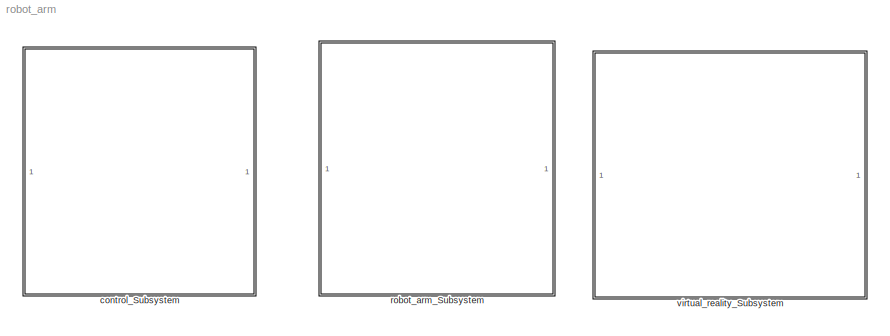
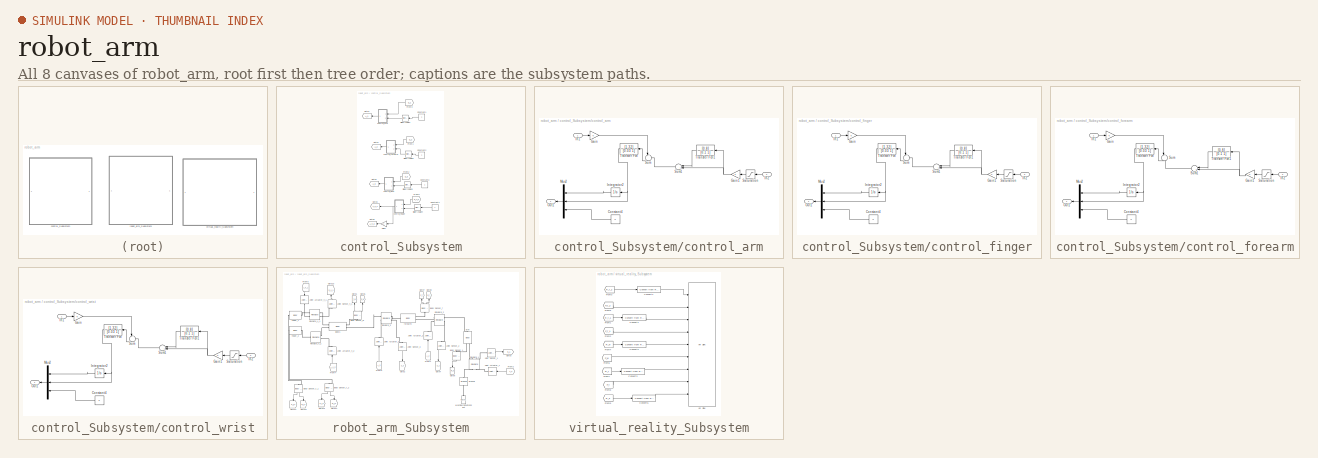
[diagram: thumbnail index - all 8 canvases of the model, root first then tree order]
MODEL robot_arm
KIND model
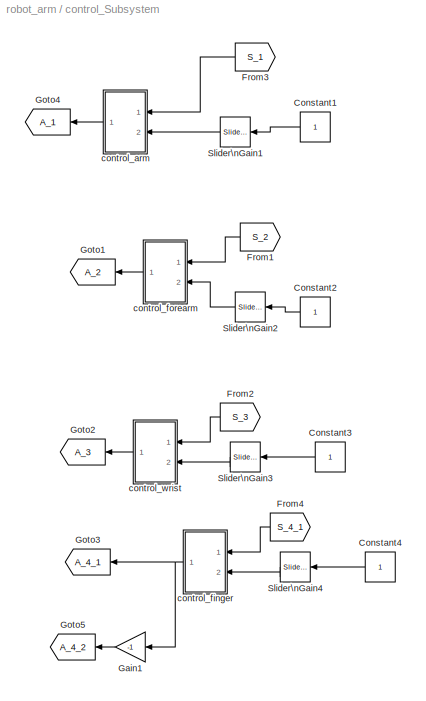
BLOCK [SubSystem] control_Subsystem
  FunctionWithSeparateData = off
  MaskHideContents = off
  MinAlgLoopOccurrences = off
  Opaque = off
  Ports = []
  PropExecContextOutsideSubsystem = off
  RTWSystemCode = Auto
  RequestExecContextInheritance = off
BLOCK [Constant] control_Subsystem/Constant1
  OutDataType = sfix(16)
  OutScaling = 2^0
BLOCK [Constant] control_Subsystem/Constant2
  OutDataType = sfix(16)
  OutScaling = 2^0
BLOCK [Constant] control_Subsystem/Constant3
  OutDataType = sfix(16)
  OutScaling = 2^0
BLOCK [Constant] control_Subsystem/Constant4
  OutDataType = sfix(16)
  OutScaling = 2^0
BLOCK [From] control_Subsystem/From1
  CloseFcn = tagdialog Close
  GotoTag = S_2
  TagVisibility = global
BLOCK [From] control_Subsystem/From2
  CloseFcn = tagdialog Close
  GotoTag = S_3
  TagVisibility = global
BLOCK [From] control_Subsystem/From3
  CloseFcn = tagdialog Close
  GotoTag = S_1
  TagVisibility = global
BLOCK [From] control_Subsystem/From4
  CloseFcn = tagdialog Close
  GotoTag = S_4_1
  TagVisibility = global
BLOCK [Gain] control_Subsystem/Gain1
  Gain = -1
  OutDataType = sfix(16)
  OutDataTypeMode = Inherit via internal rule
  OutDataTypeStr = Inherit: Inherit via internal rule
  OutScaling = 2^0
  ParamDataTypeStr = Inherit: Inherit via internal rule
  ParameterDataType = sfix(16)
  ParameterDataTypeMode = Inherit via internal rule
  ParameterScaling = 2^0
  SaturateOnIntegerOverflow = off
BLOCK [Goto] control_Subsystem/Goto1
  GotoTag = A_2
  TagVisibility = global
BLOCK [Goto] control_Subsystem/Goto2
  GotoTag = A_3
  TagVisibility = global
BLOCK [Goto] control_Subsystem/Goto3
  GotoTag = A_4_1
  TagVisibility = global
BLOCK [Goto] control_Subsystem/Goto4
  GotoTag = A_1
  TagVisibility = global
BLOCK [Goto] control_Subsystem/Goto5
  GotoTag = A_4_2
  TagVisibility = global
BLOCK [Reference] control_Subsystem/Slider\nGain1  REF=simulink/Math\nOperations/Slider\nGain
  FunctionWithSeparateData = off
  Ports = [1, 1]
  RTWMemSecDataConstants = Inherit from model
  RTWMemSecDataInternal = Inherit from model
  RTWMemSecDataParameters = Inherit from model
  RTWMemSecFuncExecute = Inherit from model
  RTWMemSecFuncInitTerm = Inherit from model
  ShowPortLabels = FromPortIcon
  SourceBlock = simulink/Math\nOperations/Slider\nGain
  SourceType = Slider Gain
  SystemSampleTime = -1
  gain = 22.811
  high = 90
  low = -90
BLOCK [Reference] control_Subsystem/Slider\nGain2  REF=simulink/Math\nOperations/Slider\nGain
  FunctionWithSeparateData = off
  Ports = [1, 1]
  RTWMemSecDataConstants = Inherit from model
  RTWMemSecDataInternal = Inherit from model
  RTWMemSecDataParameters = Inherit from model
  RTWMemSecFuncExecute = Inherit from model
  RTWMemSecFuncInitTerm = Inherit from model
  ShowPortLabels = FromPortIcon
  SourceBlock = simulink/Math\nOperations/Slider\nGain
  SourceType = Slider Gain
  SystemSampleTime = -1
  gain = 17.5807
  high = 30
  low = -25
BLOCK [Reference] control_Subsystem/Slider\nGain3  REF=simulink/Math\nOperations/Slider\nGain
  FunctionWithSeparateData = off
  Ports = [1, 1]
  RTWMemSecDataConstants = Inherit from model
  RTWMemSecDataInternal = Inherit from model
  RTWMemSecDataParameters = Inherit from model
  RTWMemSecFuncExecute = Inherit from model
  RTWMemSecFuncInitTerm = Inherit from model
  ShowPortLabels = FromPortIcon
  SourceBlock = simulink/Math\nOperations/Slider\nGain
  SourceType = Slider Gain
  SystemSampleTime = -1
  gain = 0.48385
  high = 45
  low = -25
BLOCK [Reference] control_Subsystem/Slider\nGain4  REF=simulink/Math\nOperations/Slider\nGain
  FunctionWithSeparateData = off
  Ports = [1, 1]
  RTWMemSecDataConstants = Inherit from model
  RTWMemSecDataInternal = Inherit from model
  RTWMemSecDataParameters = Inherit from model
  RTWMemSecFuncExecute = Inherit from model
  RTWMemSecFuncInitTerm = Inherit from model
  ShowPortLabels = FromPortIcon
  SourceBlock = simulink/Math\nOperations/Slider\nGain
  SourceType = Slider Gain
  SystemSampleTime = -1
  gain = 0
  high = 0
  low = -10
BLOCK [SubSystem] control_Subsystem/control_arm
  FunctionWithSeparateData = off
  MaskHideContents = off
  MinAlgLoopOccurrences = off
  Opaque = off
  Ports = [2, 1]
  PropExecContextOutsideSubsystem = off
  RTWSystemCode = Auto
  RequestExecContextInheritance = off
BLOCK [Constant] control_Subsystem/control_arm/Constant4
  OutDataType = sfix(16)
  OutScaling = 2^0
  Value = 0
BLOCK [Gain] control_Subsystem/control_arm/Gain
  OutDataType = sfix(16)
  OutDataTypeMode = Inherit via internal rule
  OutDataTypeStr = Inherit: Inherit via internal rule
  OutScaling = 2^0
  ParamDataTypeStr = Inherit: Inherit via internal rule
  ParameterDataType = sfix(16)
  ParameterDataTypeMode = Inherit via internal rule
  ParameterScaling = 2^0
  SaturateOnIntegerOverflow = off
BLOCK [Gain] control_Subsystem/control_arm/Gain1
  OutDataType = sfix(16)
  OutDataTypeMode = Inherit via internal rule
  OutDataTypeStr = Inherit: Inherit via internal rule
  OutScaling = 2^0
  ParamDataTypeStr = Inherit: Inherit via internal rule
  ParameterDataType = sfix(16)
  ParameterDataTypeMode = Inherit via internal rule
  ParameterScaling = 2^0
  SaturateOnIntegerOverflow = off
BLOCK [Inport] control_Subsystem/control_arm/In1
  IconDisplay = Port number
BLOCK [Inport] control_Subsystem/control_arm/In2
  IconDisplay = Port number
  Port = 2
BLOCK [Integrator] control_Subsystem/control_arm/Integrator2
  Ports = [1, 1]
BLOCK [Mux] control_Subsystem/control_arm/Mux2
  DisplayOption = bar
  Inputs = 3
  Ports = [3, 1]
BLOCK [Outport] control_Subsystem/control_arm/Out1
  IconDisplay = Port number
BLOCK [Saturate] control_Subsystem/control_arm/Saturation
  LowerLimit = -90
  OutDataType = sfix(16)
  OutMax = [90]
  OutMin = [-90]
  OutScaling = 2^0
  UpperLimit = 90
BLOCK [Sum] control_Subsystem/control_arm/Sum
  IconShape = round
  InputSameDT = off
  Inputs = |-+
  OutDataType = sfix(16)
  OutDataTypeMode = Inherit via internal rule
  OutDataTypeStr = Inherit: Inherit via internal rule
  OutScaling = 2^0
  Ports = [2, 1]
  SaturateOnIntegerOverflow = off
BLOCK [Sum] control_Subsystem/control_arm/Sum1
  IconShape = round
  InputSameDT = off
  Inputs = |++
  OutDataType = sfix(16)
  OutDataTypeMode = Inherit via internal rule
  OutDataTypeStr = Inherit: Inherit via internal rule
  OutScaling = 2^0
  Ports = [2, 1]
  SaturateOnIntegerOverflow = off
BLOCK [TransferFcn] control_Subsystem/control_arm/Transfer Fcn
  Denominator = [0.03 1]
  Numerator = [1.32]
BLOCK [TransferFcn] control_Subsystem/control_arm/Transfer Fcn1
  Denominator = [0.1 1]
  Numerator = [0.8]
BLOCK [SubSystem] control_Subsystem/control_finger
  FunctionWithSeparateData = off
  MaskHideContents = off
  MinAlgLoopOccurrences = off
  Opaque = off
  Ports = [2, 1]
  PropExecContextOutsideSubsystem = off
  RTWSystemCode = Auto
  RequestExecContextInheritance = off
BLOCK [Constant] control_Subsystem/control_finger/Constant4
  OutDataType = sfix(16)
  OutScaling = 2^0
  Value = 0
BLOCK [Gain] control_Subsystem/control_finger/Gain
  OutDataType = sfix(16)
  OutDataTypeMode = Inherit via internal rule
  OutDataTypeStr = Inherit: Inherit via internal rule
  OutScaling = 2^0
  ParamDataTypeStr = Inherit: Inherit via internal rule
  ParameterDataType = sfix(16)
  ParameterDataTypeMode = Inherit via internal rule
  ParameterScaling = 2^0
  SaturateOnIntegerOverflow = off
BLOCK [Gain] control_Subsystem/control_finger/Gain1
  OutDataType = sfix(16)
  OutDataTypeMode = Inherit via internal rule
  OutDataTypeStr = Inherit: Inherit via internal rule
  OutScaling = 2^0
  ParamDataTypeStr = Inherit: Inherit via internal rule
  ParameterDataType = sfix(16)
  ParameterDataTypeMode = Inherit via internal rule
  ParameterScaling = 2^0
  SaturateOnIntegerOverflow = off
BLOCK [Inport] control_Subsystem/control_finger/In1
  IconDisplay = Port number
BLOCK [Inport] control_Subsystem/control_finger/In2
  IconDisplay = Port number
  Port = 2
BLOCK [Integrator] control_Subsystem/control_finger/Integrator2
  Ports = [1, 1]
BLOCK [Mux] control_Subsystem/control_finger/Mux2
  DisplayOption = bar
  Inputs = 3
  Ports = [3, 1]
BLOCK [Outport] control_Subsystem/control_finger/Out1
  IconDisplay = Port number
BLOCK [Saturate] control_Subsystem/control_finger/Saturation
  LowerLimit = -90
  OutDataType = sfix(16)
  OutMax = [90]
  OutMin = [-90]
  OutScaling = 2^0
  UpperLimit = 80
BLOCK [Sum] control_Subsystem/control_finger/Sum
  IconShape = round
  InputSameDT = off
  Inputs = |-+
  OutDataType = sfix(16)
  OutDataTypeMode = Inherit via internal rule
  OutDataTypeStr = Inherit: Inherit via internal rule
  OutScaling = 2^0
  Ports = [2, 1]
  SaturateOnIntegerOverflow = off
BLOCK [Sum] control_Subsystem/control_finger/Sum1
  IconShape = round
  InputSameDT = off
  Inputs = |++
  OutDataType = sfix(16)
  OutDataTypeMode = Inherit via internal rule
  OutDataTypeStr = Inherit: Inherit via internal rule
  OutScaling = 2^0
  Ports = [2, 1]
  SaturateOnIntegerOverflow = off
BLOCK [TransferFcn] control_Subsystem/control_finger/Transfer Fcn
  Denominator = [0.03 1]
  Numerator = [1.32]
BLOCK [TransferFcn] control_Subsystem/control_finger/Transfer Fcn1
  Denominator = [0.1 1]
  Numerator = [0.8]
BLOCK [SubSystem] control_Subsystem/control_forearm
  FunctionWithSeparateData = off
  MaskHideContents = off
  MinAlgLoopOccurrences = off
  Opaque = off
  Ports = [2, 1]
  PropExecContextOutsideSubsystem = off
  RTWSystemCode = Auto
  RequestExecContextInheritance = off
BLOCK [Constant] control_Subsystem/control_forearm/Constant4
  OutDataType = sfix(16)
  OutScaling = 2^0
  Value = 0
BLOCK [Gain] control_Subsystem/control_forearm/Gain
  OutDataType = sfix(16)
  OutDataTypeMode = Inherit via internal rule
  OutDataTypeStr = Inherit: Inherit via internal rule
  OutScaling = 2^0
  ParamDataTypeStr = Inherit: Inherit via internal rule
  ParameterDataType = sfix(16)
  ParameterDataTypeMode = Inherit via internal rule
  ParameterScaling = 2^0
  SaturateOnIntegerOverflow = off
BLOCK [Gain] control_Subsystem/control_forearm/Gain1
  OutDataType = sfix(16)
  OutDataTypeMode = Inherit via internal rule
  OutDataTypeStr = Inherit: Inherit via internal rule
  OutScaling = 2^0
  ParamDataTypeStr = Inherit: Inherit via internal rule
  ParameterDataType = sfix(16)
  ParameterDataTypeMode = Inherit via internal rule
  ParameterScaling = 2^0
  SaturateOnIntegerOverflow = off
BLOCK [Inport] control_Subsystem/control_forearm/In1
  IconDisplay = Port number
BLOCK [Inport] control_Subsystem/control_forearm/In2
  IconDisplay = Port number
  Port = 2
BLOCK [Integrator] control_Subsystem/control_forearm/Integrator2
  Ports = [1, 1]
BLOCK [Mux] control_Subsystem/control_forearm/Mux2
  DisplayOption = bar
  Inputs = 3
  Ports = [3, 1]
BLOCK [Outport] control_Subsystem/control_forearm/Out1
  IconDisplay = Port number
BLOCK [Saturate] control_Subsystem/control_forearm/Saturation
  LowerLimit = -90
  OutDataType = sfix(16)
  OutMax = [90]
  OutMin = [-90]
  OutScaling = 2^0
  UpperLimit = 80
BLOCK [Sum] control_Subsystem/control_forearm/Sum
  IconShape = round
  InputSameDT = off
  Inputs = |-+
  OutDataType = sfix(16)
  OutDataTypeMode = Inherit via internal rule
  OutDataTypeStr = Inherit: Inherit via internal rule
  OutScaling = 2^0
  Ports = [2, 1]
  SaturateOnIntegerOverflow = off
BLOCK [Sum] control_Subsystem/control_forearm/Sum1
  IconShape = round
  InputSameDT = off
  Inputs = |++
  OutDataType = sfix(16)
  OutDataTypeMode = Inherit via internal rule
  OutDataTypeStr = Inherit: Inherit via internal rule
  OutScaling = 2^0
  Ports = [2, 1]
  SaturateOnIntegerOverflow = off
BLOCK [TransferFcn] control_Subsystem/control_forearm/Transfer Fcn
  Denominator = [0.03 1]
  Numerator = [1.32]
BLOCK [TransferFcn] control_Subsystem/control_forearm/Transfer Fcn1
  Denominator = [0.1 1]
  Numerator = [0.8]
BLOCK [SubSystem] control_Subsystem/control_wrist
  FunctionWithSeparateData = off
  MaskHideContents = off
  MinAlgLoopOccurrences = off
  Opaque = off
  Ports = [2, 1]
  PropExecContextOutsideSubsystem = off
  RTWSystemCode = Auto
  RequestExecContextInheritance = off
BLOCK [Constant] control_Subsystem/control_wrist/Constant4
  OutDataType = sfix(16)
  OutScaling = 2^0
  Value = 0
BLOCK [Gain] control_Subsystem/control_wrist/Gain
  OutDataType = sfix(16)
  OutDataTypeMode = Inherit via internal rule
  OutDataTypeStr = Inherit: Inherit via internal rule
  OutScaling = 2^0
  ParamDataTypeStr = Inherit: Inherit via internal rule
  ParameterDataType = sfix(16)
  ParameterDataTypeMode = Inherit via internal rule
  ParameterScaling = 2^0
  SaturateOnIntegerOverflow = off
BLOCK [Gain] control_Subsystem/control_wrist/Gain1
  OutDataType = sfix(16)
  OutDataTypeMode = Inherit via internal rule
  OutDataTypeStr = Inherit: Inherit via internal rule
  OutScaling = 2^0
  ParamDataTypeStr = Inherit: Inherit via internal rule
  ParameterDataType = sfix(16)
  ParameterDataTypeMode = Inherit via internal rule
  ParameterScaling = 2^0
  SaturateOnIntegerOverflow = off
BLOCK [Inport] control_Subsystem/control_wrist/In1
  IconDisplay = Port number
BLOCK [Inport] control_Subsystem/control_wrist/In2
  IconDisplay = Port number
  Port = 2
BLOCK [Integrator] control_Subsystem/control_wrist/Integrator2
  Ports = [1, 1]
BLOCK [Mux] control_Subsystem/control_wrist/Mux2
  DisplayOption = bar
  Inputs = 3
  Ports = [3, 1]
BLOCK [Outport] control_Subsystem/control_wrist/Out1
  IconDisplay = Port number
BLOCK [Saturate] control_Subsystem/control_wrist/Saturation
  LowerLimit = -90
  OutDataType = sfix(16)
  OutMax = [90]
  OutMin = [-90]
  OutScaling = 2^0
  UpperLimit = 80
BLOCK [Sum] control_Subsystem/control_wrist/Sum
  IconShape = round
  InputSameDT = off
  Inputs = |-+
  OutDataType = sfix(16)
  OutDataTypeMode = Inherit via internal rule
  OutDataTypeStr = Inherit: Inherit via internal rule
  OutScaling = 2^0
  Ports = [2, 1]
  SaturateOnIntegerOverflow = off
BLOCK [Sum] control_Subsystem/control_wrist/Sum1
  IconShape = round
  InputSameDT = off
  Inputs = |++
  OutDataType = sfix(16)
  OutDataTypeMode = Inherit via internal rule
  OutDataTypeStr = Inherit: Inherit via internal rule
  OutScaling = 2^0
  Ports = [2, 1]
  SaturateOnIntegerOverflow = off
BLOCK [TransferFcn] control_Subsystem/control_wrist/Transfer Fcn
  Denominator = [0.03 1]
  Numerator = [1.32]
BLOCK [TransferFcn] control_Subsystem/control_wrist/Transfer Fcn1
  Denominator = [0.1 1]
  Numerator = [0.8]
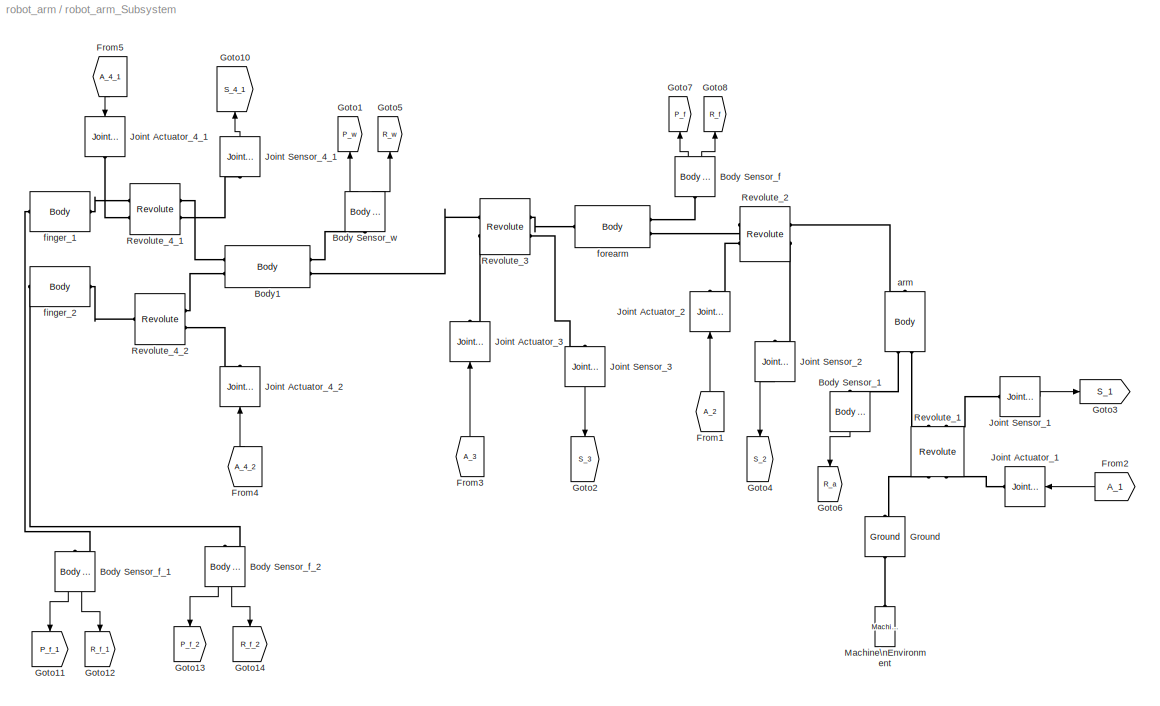
BLOCK [SubSystem] robot_arm_Subsystem
  FunctionWithSeparateData = off
  MaskHideContents = off
  MinAlgLoopOccurrences = off
  Opaque = off
  Ports = []
  PropExecContextOutsideSubsystem = off
  RTWSystemCode = Auto
  RequestExecContextInheritance = off
BLOCK [Reference] robot_arm_Subsystem/Body Sensor_1  REF=mblibv1/Sensors & \nActuators/Body Sensor
  Acceleration = off
  AccelerationUnits = m/s^2
  ActiveIO = on
  Angle = on
  AngleUnits = deg
  ArcAcceleration = off
  ArcAccelerationUnits = deg/s^2
  ArcVelocity = off
  ArcVelocityUnits = deg/s
  ClassName = BodySensor
  CoordPosition = off
  CoordPositionUnits = m
  DialogClass = MechanicalSensorBlock
  DialogController = MECH.DynMechDlgSource
  FunctionWithSeparateData = off
  Muxed = off
  OutputVector = [1]
  PhysicalDomain = Mechanical
  PortType = blob
  Ports = [0, 1, 0, 0, 0, 1]
  Pose = on
  Quaternion = on
  QuaternionDDT = off
  QuaternionDT = off
  QuaternionUnits = off
  RTWMemSecDataConstants = Inherit from model
  RTWMemSecDataInternal = Inherit from model
  RTWMemSecDataParameters = Inherit from model
  RTWMemSecFuncExecute = Inherit from model
  RTWMemSecFuncInitTerm = Inherit from model
  ReferenceFrame = Absolute (World)
  ShowPortLabels = FromPortIcon
  SourceBlock = mblibv1/Sensors & \nActuators/Body Sensor
  SourceType = Body Sensor
  SystemSampleTime = -1
  UpdateFromCAD = off
  Velocity = off
  VelocityUnits = m/s
  Width = 9
BLOCK [Reference] robot_arm_Subsystem/Body Sensor_f  REF=mblibv1/Sensors & \nActuators/Body Sensor
  Acceleration = off
  AccelerationUnits = m/s^2
  ActiveIO = on
  Angle = on
  AngleUnits = deg
  ArcAcceleration = off
  ArcAccelerationUnits = deg/s^2
  ArcVelocity = off
  ArcVelocityUnits = deg/s
  ClassName = BodySensor
  CoordPosition = on
  CoordPositionUnits = m
  DialogClass = MechanicalSensorBlock
  DialogController = MECH.DynMechDlgSource
  FunctionWithSeparateData = off
  Muxed = off
  OutputVector = [1]
  PhysicalDomain = Mechanical
  PortType = blob
  Ports = [0, 2, 0, 0, 0, 1]
  Pose = on
  Quaternion = on
  QuaternionDDT = off
  QuaternionDT = off
  QuaternionUnits = off
  RTWMemSecDataConstants = Inherit from model
  RTWMemSecDataInternal = Inherit from model
  RTWMemSecDataParameters = Inherit from model
  RTWMemSecFuncExecute = Inherit from model
  RTWMemSecFuncInitTerm = Inherit from model
  ReferenceFrame = Absolute (World)
  ShowPortLabels = FromPortIcon
  SourceBlock = mblibv1/Sensors & \nActuators/Body Sensor
  SourceType = Body Sensor
  SystemSampleTime = -1
  UpdateFromCAD = off
  Velocity = off
  VelocityUnits = m/s
  Width = 12
BLOCK [Reference] robot_arm_Subsystem/Body Sensor_f_1  REF=mblibv1/Sensors & \nActuators/Body Sensor
  Acceleration = off
  AccelerationUnits = m/s^2
  ActiveIO = on
  Angle = on
  AngleUnits = deg
  ArcAcceleration = off
  ArcAccelerationUnits = deg/s^2
  ArcVelocity = off
  ArcVelocityUnits = deg/s
  ClassName = BodySensor
  CoordPosition = on
  CoordPositionUnits = m
  DialogClass = MechanicalSensorBlock
  DialogController = MECH.DynMechDlgSource
  FunctionWithSeparateData = off
  Muxed = off
  OutputVector = [1]
  PhysicalDomain = Mechanical
  PortType = blob
  Ports = [0, 2, 0, 0, 0, 1]
  Pose = on
  Quaternion = on
  QuaternionDDT = off
  QuaternionDT = off
  QuaternionUnits = off
  RTWMemSecDataConstants = Inherit from model
  RTWMemSecDataInternal = Inherit from model
  RTWMemSecDataParameters = Inherit from model
  RTWMemSecFuncExecute = Inherit from model
  RTWMemSecFuncInitTerm = Inherit from model
  ReferenceFrame = Absolute (World)
  ShowPortLabels = FromPortIcon
  SourceBlock = mblibv1/Sensors & \nActuators/Body Sensor
  SourceType = Body Sensor
  SystemSampleTime = -1
  UpdateFromCAD = off
  Velocity = off
  VelocityUnits = m/s
  Width = 12
BLOCK [Reference] robot_arm_Subsystem/Body Sensor_f_2  REF=mblibv1/Sensors & \nActuators/Body Sensor
  Acceleration = off
  AccelerationUnits = m/s^2
  ActiveIO = on
  Angle = on
  AngleUnits = deg
  ArcAcceleration = off
  ArcAccelerationUnits = deg/s^2
  ArcVelocity = off
  ArcVelocityUnits = deg/s
  ClassName = BodySensor
  CoordPosition = on
  CoordPositionUnits = m
  DialogClass = MechanicalSensorBlock
  DialogController = MECH.DynMechDlgSource
  FunctionWithSeparateData = off
  Muxed = off
  OutputVector = [1]
  PhysicalDomain = Mechanical
  PortType = blob
  Ports = [0, 2, 0, 0, 0, 1]
  Pose = on
  Quaternion = on
  QuaternionDDT = off
  QuaternionDT = off
  QuaternionUnits = off
  RTWMemSecDataConstants = Inherit from model
  RTWMemSecDataInternal = Inherit from model
  RTWMemSecDataParameters = Inherit from model
  RTWMemSecFuncExecute = Inherit from model
  RTWMemSecFuncInitTerm = Inherit from model
  ReferenceFrame = Absolute (World)
  ShowPortLabels = FromPortIcon
  SourceBlock = mblibv1/Sensors & \nActuators/Body Sensor
  SourceType = Body Sensor
  SystemSampleTime = -1
  UpdateFromCAD = off
  Velocity = off
  VelocityUnits = m/s
  Width = 12
BLOCK [Reference] robot_arm_Subsystem/Body Sensor_w  REF=mblibv1/Sensors & \nActuators/Body Sensor
  Acceleration = off
  AccelerationUnits = m/s^2
  ActiveIO = on
  Angle = on
  AngleUnits = deg
  ArcAcceleration = off
  ArcAccelerationUnits = deg/s^2
  ArcVelocity = off
  ArcVelocityUnits = deg/s
  ClassName = BodySensor
  CoordPosition = on
  CoordPositionUnits = m
  DialogClass = MechanicalSensorBlock
  DialogController = MECH.DynMechDlgSource
  FunctionWithSeparateData = off
  Muxed = off
  OutputVector = [1]
  PhysicalDomain = Mechanical
  PortType = blob
  Ports = [0, 2, 0, 0, 0, 1]
  Pose = on
  Quaternion = on
  QuaternionDDT = off
  QuaternionDT = off
  QuaternionUnits = off
  RTWMemSecDataConstants = Inherit from model
  RTWMemSecDataInternal = Inherit from model
  RTWMemSecDataParameters = Inherit from model
  RTWMemSecFuncExecute = Inherit from model
  RTWMemSecFuncInitTerm = Inherit from model
  ReferenceFrame = Absolute (World)
  ShowPortLabels = FromPortIcon
  SourceBlock = mblibv1/Sensors & \nActuators/Body Sensor
  SourceType = Body Sensor
  SystemSampleTime = -1
  UpdateFromCAD = off
  Velocity = off
  VelocityUnits = m/s
  Width = 12
BLOCK [Reference] robot_arm_Subsystem/Body1  REF=mblibv1/Bodies/Body
  AttachedToCS = CG
  BodyColor = [1 0 0]
  BodyColorSelMode = MACHINE_DEFAULT
  CG = Left$CG$[0 0.1 0]$CS1$CS1$m$[0 0 0]$Euler X-Y-Z$deg$CS1$true$none
  CGPos = [0 0.1 0]
  CGRot = [0 0 0]
  CS0Pos = []
  CS0Rot = []
  CS10Pos = []
  CS10Rot = []
  CS11Pos = []
  CS11Rot = []
  CS12Pos = []
  CS12Rot = []
  CS13Pos = []
  CS13Rot = []
  CS14Pos = []
  CS14Rot = []
  CS15Pos = []
  CS15Rot = []
  CS16Pos = []
  CS16Rot = []
  CS17Pos = []
  CS17Rot = []
  CS18Pos = []
  CS18Rot = []
  CS19Pos = []
  CS19Rot = []
  CS1Pos = [0 0 0]
  CS1Rot = [0 0 45]
  CS20Pos = []
  CS20Rot = []
  CS2Pos = [0 0.2 -0.03]
  CS2Rot = [0 0 0]
  CS3Pos = [0 0.2 0.03]
  CS3Rot = [0 0 0]
  CS4Pos = []
  CS4Rot = []
  CS5Pos = []
  CS5Rot = []
  CS6Pos = []
  CS6Rot = []
  CS7Pos = []
  CS7Rot = []
  CS8Pos = []
  CS8Rot = []
  CS9Pos = []
  CS9Rot = []
  ClassName = Body
  Density = 1
  DensityUnits = kg/m^3
  DensityUse = false
  DialogClass = MechanicalBodyBlock
  DialogController = MECH.DynMechDlgSource
  GraphicsMode = MACHINE_DEFAULT
  Inertia = [0.0038 0 0 ; 0 0.0005 0 ;0 0 0.0038]
  InertiaUnits = kg*m^2
  LConnTagsString = CG|CS1
  LeftPortType = workingframe
  Mass = 1.9
  MassUnits = kg
  PhysicalDomain = mechanical
  Ports = [0, 0, 0, 0, 0, 2, 2]
  RConnTagsString = CS3|CS2
  RightPortType = workingframe
  Shape = Cylinder
  ShapeDims = [1 1]
  ShapeUnits = m
  ShapeUse = false
  SourceBlock = mblibv1/Bodies/Body
  SourceType = Body
  SubClassName = Unknown
  UpdateFromCAD = off
  WorkingFrames = Right$CS3$[0 0.2 0.03]$CS1$CS1$m$[0 0 0]$Euler X-Y-Z$deg$CS1$true$none#Left$CS1$[0 0 0]$World$Adjoining$m$[0 0 45]$Euler X-Y-Z$deg$Adjoining$true$none#Right$CS2$[0 0.2 -0.03]$CS1$CS1$m$[0 0 0]$Euler X-Y-Z$deg$CS1$true$none
BLOCK [From] robot_arm_Subsystem/From1
  CloseFcn = tagdialog Close
  GotoTag = A_2
  TagVisibility = global
BLOCK [From] robot_arm_Subsystem/From2
  CloseFcn = tagdialog Close
  GotoTag = A_1
  TagVisibility = global
BLOCK [From] robot_arm_Subsystem/From3
  CloseFcn = tagdialog Close
  GotoTag = A_3
  TagVisibility = global
BLOCK [From] robot_arm_Subsystem/From4
  CloseFcn = tagdialog Close
  GotoTag = A_4_2
  TagVisibility = global
BLOCK [From] robot_arm_Subsystem/From5
  CloseFcn = tagdialog Close
  GotoTag = A_4_1
  TagVisibility = global
BLOCK [Goto] robot_arm_Subsystem/Goto1
  GotoTag = P_w
  TagVisibility = global
BLOCK [Goto] robot_arm_Subsystem/Goto10
  GotoTag = S_4_1
  TagVisibility = global
BLOCK [Goto] robot_arm_Subsystem/Goto11
  GotoTag = P_f_1
  TagVisibility = global
BLOCK [Goto] robot_arm_Subsystem/Goto12
  GotoTag = R_f_1
  TagVisibility = global
BLOCK [Goto] robot_arm_Subsystem/Goto13
  GotoTag = P_f_2
  TagVisibility = global
BLOCK [Goto] robot_arm_Subsystem/Goto14
  GotoTag = R_f_2
  TagVisibility = global
BLOCK [Goto] robot_arm_Subsystem/Goto2
  GotoTag = S_3
  TagVisibility = global
BLOCK [Goto] robot_arm_Subsystem/Goto3
  GotoTag = S_1
  TagVisibility = global
BLOCK [Goto] robot_arm_Subsystem/Goto4
  GotoTag = S_2
  TagVisibility = global
BLOCK [Goto] robot_arm_Subsystem/Goto5
  GotoTag = R_w
  TagVisibility = global
BLOCK [Goto] robot_arm_Subsystem/Goto6
  GotoTag = R_a
  TagVisibility = global
BLOCK [Goto] robot_arm_Subsystem/Goto7
  GotoTag = P_f
  TagVisibility = global
BLOCK [Goto] robot_arm_Subsystem/Goto8
  GotoTag = R_f
  TagVisibility = global
BLOCK [Reference] robot_arm_Subsystem/Ground  REF=mblibv1/Bodies/Ground
  ClassName = Ground
  CoordPosition = [0 0 0]
  CoordPositionUnits = m
  DialogClass = GroundBlock
  DialogController = MECH.DynMechDlgSource
  FunctionWithSeparateData = off
  LeftPortType = env
  MachineId = [2 0]
  PhysicalDomain = Mechanical
  Ports = [0, 0, 0, 0, 0, 1, 1]
  RTWMemSecDataConstants = Inherit from model
  RTWMemSecDataInternal = Inherit from model
  RTWMemSecDataParameters = Inherit from model
  RTWMemSecFuncExecute = Inherit from model
  RTWMemSecFuncInitTerm = Inherit from model
  RightPortType = workingframe
  ShowEnvPort = on
  ShowPortLabels = FromPortIcon
  SourceBlock = mblibv1/Bodies/Ground
  SourceType = Ground
  StateVectorMgrId = 1
  SystemSampleTime = -1
  UpdateFromCAD = off
  UserData = DataTag0
  UserDataPersistent = on
BLOCK [Reference] robot_arm_Subsystem/Joint Actuator_1  REF=mblibv1/Sensors & \nActuators/Joint Actuator
  AccelerationUnits = m/s^2
  ActiveIO = on
  ActuationStyle = Motion
  AngleUnits = deg
  ArcAccelerationUnits = deg/s^2
  ArcVelocityUnits = deg/s
  ClassName = JointActuator
  CoordPositionUnits = m
  DialogClass = MechanicalActuatorBlock
  DialogController = MECH.DynMechDlgSource
  ForceUnits = N
  FunctionWithSeparateData = off
  PhysicalDomain = Mechanical
  PortType = blob
  Ports = [1, 0, 0, 0, 0, 0, 1]
  Primitive = R1
  RTWMemSecDataConstants = Inherit from model
  RTWMemSecDataInternal = Inherit from model
  RTWMemSecDataParameters = Inherit from model
  RTWMemSecFuncExecute = Inherit from model
  RTWMemSecFuncInitTerm = Inherit from model
  ReferenceFrame = Absolute (INERTIAL)
  ShowPortLabels = FromPortIcon
  SourceBlock = mblibv1/Sensors & \nActuators/Joint Actuator
  SourceType = Joint Actuator
  SystemSampleTime = -1
  TorqueUnits = N*m
  UpdateFromCAD = off
  VelocityUnits = m/s
  Width = 3
BLOCK [Reference] robot_arm_Subsystem/Joint Actuator_2  REF=mblibv1/Sensors & \nActuators/Joint Actuator
  AccelerationUnits = m/s^2
  ActiveIO = on
  ActuationStyle = Motion
  AngleUnits = deg
  ArcAccelerationUnits = deg/s^2
  ArcVelocityUnits = deg/s
  ClassName = JointActuator
  CoordPositionUnits = m
  DialogClass = MechanicalActuatorBlock
  DialogController = MECH.DynMechDlgSource
  ForceUnits = N
  FunctionWithSeparateData = off
  PhysicalDomain = Mechanical
  PortType = blob
  Ports = [1, 0, 0, 0, 0, 0, 1]
  Primitive = R1
  RTWMemSecDataConstants = Inherit from model
  RTWMemSecDataInternal = Inherit from model
  RTWMemSecDataParameters = Inherit from model
  RTWMemSecFuncExecute = Inherit from model
  RTWMemSecFuncInitTerm = Inherit from model
  ReferenceFrame = Absolute (INERTIAL)
  ShowPortLabels = FromPortIcon
  SourceBlock = mblibv1/Sensors & \nActuators/Joint Actuator
  SourceType = Joint Actuator
  SystemSampleTime = -1
  TorqueUnits = N*m
  UpdateFromCAD = off
  VelocityUnits = m/s
  Width = 3
BLOCK [Reference] robot_arm_Subsystem/Joint Actuator_3  REF=mblibv1/Sensors & \nActuators/Joint Actuator
  AccelerationUnits = m/s^2
  ActiveIO = on
  ActuationStyle = Motion
  AngleUnits = deg
  ArcAccelerationUnits = deg/s^2
  ArcVelocityUnits = deg/s
  ClassName = JointActuator
  CoordPositionUnits = m
  DialogClass = MechanicalActuatorBlock
  DialogController = MECH.DynMechDlgSource
  ForceUnits = N
  FunctionWithSeparateData = off
  PhysicalDomain = Mechanical
  PortType = blob
  Ports = [1, 0, 0, 0, 0, 0, 1]
  Primitive = R1
  RTWMemSecDataConstants = Inherit from model
  RTWMemSecDataInternal = Inherit from model
  RTWMemSecDataParameters = Inherit from model
  RTWMemSecFuncExecute = Inherit from model
  RTWMemSecFuncInitTerm = Inherit from model
  ReferenceFrame = Absolute (INERTIAL)
  ShowPortLabels = FromPortIcon
  SourceBlock = mblibv1/Sensors & \nActuators/Joint Actuator
  SourceType = Joint Actuator
  SystemSampleTime = -1
  TorqueUnits = N*m
  UpdateFromCAD = off
  VelocityUnits = m/s
  Width = 3
BLOCK [Reference] robot_arm_Subsystem/Joint Actuator_4_1  REF=mblibv1/Sensors & \nActuators/Joint Actuator
  AccelerationUnits = m/s^2
  ActiveIO = on
  ActuationStyle = Motion
  AngleUnits = deg
  ArcAccelerationUnits = deg/s^2
  ArcVelocityUnits = deg/s
  ClassName = JointActuator
  CoordPositionUnits = m
  DialogClass = MechanicalActuatorBlock
  DialogController = MECH.DynMechDlgSource
  ForceUnits = N
  FunctionWithSeparateData = off
  PhysicalDomain = Mechanical
  PortType = blob
  Ports = [1, 0, 0, 0, 0, 0, 1]
  Primitive = R1
  RTWMemSecDataConstants = Inherit from model
  RTWMemSecDataInternal = Inherit from model
  RTWMemSecDataParameters = Inherit from model
  RTWMemSecFuncExecute = Inherit from model
  RTWMemSecFuncInitTerm = Inherit from model
  ReferenceFrame = Absolute (INERTIAL)
  ShowPortLabels = FromPortIcon
  SourceBlock = mblibv1/Sensors & \nActuators/Joint Actuator
  SourceType = Joint Actuator
  SystemSampleTime = -1
  TorqueUnits = N*m
  UpdateFromCAD = off
  VelocityUnits = m/s
  Width = 3
BLOCK [Reference] robot_arm_Subsystem/Joint Actuator_4_2  REF=mblibv1/Sensors & \nActuators/Joint Actuator
  AccelerationUnits = m/s^2
  ActiveIO = on
  ActuationStyle = Motion
  AngleUnits = deg
  ArcAccelerationUnits = deg/s^2
  ArcVelocityUnits = deg/s
  ClassName = JointActuator
  CoordPositionUnits = m
  DialogClass = MechanicalActuatorBlock
  DialogController = MECH.DynMechDlgSource
  ForceUnits = N
  FunctionWithSeparateData = off
  PhysicalDomain = Mechanical
  PortType = blob
  Ports = [1, 0, 0, 0, 0, 0, 1]
  Primitive = R1
  RTWMemSecDataConstants = Inherit from model
  RTWMemSecDataInternal = Inherit from model
  RTWMemSecDataParameters = Inherit from model
  RTWMemSecFuncExecute = Inherit from model
  RTWMemSecFuncInitTerm = Inherit from model
  ReferenceFrame = Absolute (INERTIAL)
  ShowPortLabels = FromPortIcon
  SourceBlock = mblibv1/Sensors & \nActuators/Joint Actuator
  SourceType = Joint Actuator
  SystemSampleTime = -1
  TorqueUnits = N*m
  UpdateFromCAD = off
  VelocityUnits = m/s
  Width = 3
BLOCK [Reference] robot_arm_Subsystem/Joint Sensor_1  REF=mblibv1/Sensors & \nActuators/Joint Sensor
  Acceleration = off
  AccelerationUnits = m/s^2
  ActiveIO = on
  Angle = on
  AngleUnits = deg
  ArcAcceleration = off
  ArcAccelerationUnits = deg/s^2
  ArcVelocity = off
  ArcVelocityUnits = deg/s
  ClassName = JointSensor
  CoordPosition = on
  CoordPositionUnits = m
  DialogClass = MechanicalSensorBlock
  DialogController = MECH.DynMechDlgSource
  Force = off
  ForceUnits = N
  FunctionWithSeparateData = off
  Muxed = on
  OutputVector = [1]
  PhysicalDomain = Mechanical
  PortType = blob
  Ports = [0, 1, 0, 0, 0, 1]
  Pose = off
  Primitive = R1
  Quaternion = on
  QuaternionDDT = off
  QuaternionDT = off
  QuaternionUnits = off
  RTWMemSecDataConstants = Inherit from model
  RTWMemSecDataInternal = Inherit from model
  RTWMemSecDataParameters = Inherit from model
  RTWMemSecFuncExecute = Inherit from model
  RTWMemSecFuncInitTerm = Inherit from model
  ReactionForce = off
  ReactionForceUnits = N
  ReactionMoment = off
  ReactionMomentUnits = N*m
  ReactionReferenceFrame = Absolute (World)
  ReactionSensedSide = Base
  ReferenceFrame = Absolute (World)
  ShowPortLabels = FromPortIcon
  SourceBlock = mblibv1/Sensors & \nActuators/Joint Sensor
  SourceType = Joint Sensor
  SystemSampleTime = -1
  Torque = off
  TorqueUnits = N*m
  UpdateFromCAD = off
  Velocity = off
  VelocityUnits = m/s
  Width = 1
BLOCK [Reference] robot_arm_Subsystem/Joint Sensor_2  REF=mblibv1/Sensors & \nActuators/Joint Sensor
  Acceleration = off
  AccelerationUnits = m/s^2
  ActiveIO = on
  Angle = on
  AngleUnits = deg
  ArcAcceleration = off
  ArcAccelerationUnits = deg/s^2
  ArcVelocity = off
  ArcVelocityUnits = deg/s
  ClassName = JointSensor
  CoordPosition = on
  CoordPositionUnits = m
  DialogClass = MechanicalSensorBlock
  DialogController = MECH.DynMechDlgSource
  Force = off
  ForceUnits = N
  FunctionWithSeparateData = off
  Muxed = on
  OutputVector = [1]
  PhysicalDomain = Mechanical
  PortType = blob
  Ports = [0, 1, 0, 0, 0, 1]
  Pose = off
  Primitive = R1
  Quaternion = on
  QuaternionDDT = off
  QuaternionDT = off
  QuaternionUnits = off
  RTWMemSecDataConstants = Inherit from model
  RTWMemSecDataInternal = Inherit from model
  RTWMemSecDataParameters = Inherit from model
  RTWMemSecFuncExecute = Inherit from model
  RTWMemSecFuncInitTerm = Inherit from model
  ReactionForce = off
  ReactionForceUnits = N
  ReactionMoment = off
  ReactionMomentUnits = N*m
  ReactionReferenceFrame = Absolute (World)
  ReactionSensedSide = Base
  ReferenceFrame = Absolute (World)
  ShowPortLabels = FromPortIcon
  SourceBlock = mblibv1/Sensors & \nActuators/Joint Sensor
  SourceType = Joint Sensor
  SystemSampleTime = -1
  Torque = off
  TorqueUnits = N*m
  UpdateFromCAD = off
  Velocity = off
  VelocityUnits = m/s
  Width = 1
BLOCK [Reference] robot_arm_Subsystem/Joint Sensor_3  REF=mblibv1/Sensors & \nActuators/Joint Sensor
  Acceleration = off
  AccelerationUnits = m/s^2
  ActiveIO = on
  Angle = on
  AngleUnits = deg
  ArcAcceleration = off
  ArcAccelerationUnits = deg/s^2
  ArcVelocity = off
  ArcVelocityUnits = deg/s
  ClassName = JointSensor
  CoordPosition = on
  CoordPositionUnits = m
  DialogClass = MechanicalSensorBlock
  DialogController = MECH.DynMechDlgSource
  Force = off
  ForceUnits = N
  FunctionWithSeparateData = off
  Muxed = on
  OutputVector = [1]
  PhysicalDomain = Mechanical
  PortType = blob
  Ports = [0, 1, 0, 0, 0, 1]
  Pose = off
  Primitive = R1
  Quaternion = on
  QuaternionDDT = off
  QuaternionDT = off
  QuaternionUnits = off
  RTWMemSecDataConstants = Inherit from model
  RTWMemSecDataInternal = Inherit from model
  RTWMemSecDataParameters = Inherit from model
  RTWMemSecFuncExecute = Inherit from model
  RTWMemSecFuncInitTerm = Inherit from model
  ReactionForce = off
  ReactionForceUnits = N
  ReactionMoment = off
  ReactionMomentUnits = N*m
  ReactionReferenceFrame = Absolute (World)
  ReactionSensedSide = Base
  ReferenceFrame = Absolute (World)
  ShowPortLabels = FromPortIcon
  SourceBlock = mblibv1/Sensors & \nActuators/Joint Sensor
  SourceType = Joint Sensor
  SystemSampleTime = -1
  Torque = off
  TorqueUnits = N*m
  UpdateFromCAD = off
  Velocity = off
  VelocityUnits = m/s
  Width = 1
BLOCK [Reference] robot_arm_Subsystem/Joint Sensor_4_1  REF=mblibv1/Sensors & \nActuators/Joint Sensor
  Acceleration = off
  AccelerationUnits = m/s^2
  ActiveIO = on
  Angle = on
  AngleUnits = deg
  ArcAcceleration = off
  ArcAccelerationUnits = deg/s^2
  ArcVelocity = off
  ArcVelocityUnits = deg/s
  ClassName = JointSensor
  CoordPosition = on
  CoordPositionUnits = m
  DialogClass = MechanicalSensorBlock
  DialogController = MECH.DynMechDlgSource
  Force = off
  ForceUnits = N
  FunctionWithSeparateData = off
  Muxed = on
  OutputVector = [1]
  PhysicalDomain = Mechanical
  PortType = blob
  Ports = [0, 1, 0, 0, 0, 1]
  Pose = off
  Primitive = R1
  Quaternion = on
  QuaternionDDT = off
  QuaternionDT = off
  QuaternionUnits = off
  RTWMemSecDataConstants = Inherit from model
  RTWMemSecDataInternal = Inherit from model
  RTWMemSecDataParameters = Inherit from model
  RTWMemSecFuncExecute = Inherit from model
  RTWMemSecFuncInitTerm = Inherit from model
  ReactionForce = off
  ReactionForceUnits = N
  ReactionMoment = off
  ReactionMomentUnits = N*m
  ReactionReferenceFrame = Absolute (World)
  ReactionSensedSide = Base
  ReferenceFrame = Absolute (World)
  ShowPortLabels = FromPortIcon
  SourceBlock = mblibv1/Sensors & \nActuators/Joint Sensor
  SourceType = Joint Sensor
  SystemSampleTime = -1
  Torque = off
  TorqueUnits = N*m
  UpdateFromCAD = off
  Velocity = off
  VelocityUnits = m/s
  Width = 1
BLOCK [Reference] robot_arm_Subsystem/Machine\nEnvironment  REF=mblibv1/Bodies/Machine\nEnvironment
  AnalysisType = Forward dynamics
  AngularAssemblyTolerance = 1e-3
  AngularAssemblyToleranceUnits = deg
  BodyColorSelMode = Use model default
  BodyVisualizationType = Use model default body geometries
  ClassName = Environment
  ConstraintAbsTolerance = 1e-4
  ConstraintRelTolerance = 1e-4
  ConstraintSolverType = Stabilizing
  DefaultBodyColor = [1 0 0]
  DialogController = MECH.DialogSource
  DialogTemplateClass = MECH.MachineEnvironment
  Dimensionality = Auto-detect
  FunctionWithSeparateData = off
  Gravity = [0  0 -9.81]
  GravityAsSignal = off
  GravityUnits = m/s^2
  LinearAssemblyTolerance = 1e-3
  LinearAssemblyToleranceUnits = m
  PerturbationSize = 1e-5
  PhysicalDomain = Mechanical
  PortType = env
  Ports = [0, 0, 0, 0, 0, 0, 1]
  RTWMemSecDataConstants = Inherit from model
  RTWMemSecDataInternal = Inherit from model
  RTWMemSecDataParameters = Inherit from model
  RTWMemSecFuncExecute = Inherit from model
  RTWMemSecFuncInitTerm = Inherit from model
  RedundancyAnalysisTolerance = 1e-14
  RedundancyAnalysisToleranceType = Automatically select tolerance
  ShowPortLabels = FromPortIcon
  SourceBlock = mblibv1/Bodies/Machine\nEnvironment
  SourceType = Machine Environment
  StatePerturbationType = Fixed
  SyncWhenCopied = off
  SystemSampleTime = -1
  UseRobustSingularityHandling = off
  VisualizeMachine = on
BLOCK [Reference] robot_arm_Subsystem/Revolute_1  REF=mblibv1/Joints/Revolute
  ClassName = Joint
  CutJoint = off
  DialogClass = JointBlock
  DialogController = MECH.DynMechDlgSource
  LConnTagsString = __newl0|SA1
  LeftPortType = blob
  MarkAsCut = off
  NumSAPorts = 2
  PhysicalDomain = mechanical
  Ports = [0, 0, 0, 0, 0, 2, 2]
  PrimitiveProps = R1$World$[0 1 0]$revolute
  Primitives = prismatic
  R1Axis = [0 1 0]
  RConnTagsString = __newr0|SA1
  RightPortType = blob
  SourceBlock = mblibv1/Joints/Revolute
  SourceType = Revolute
  SubClassName = Unknown
  UpdateFromCAD = off
BLOCK [Reference] robot_arm_Subsystem/Revolute_2  REF=mblibv1/Joints/Revolute
  ClassName = Joint
  CutJoint = off
  DialogClass = JointBlock
  DialogController = MECH.DynMechDlgSource
  LConnTagsString = __newl0|SA1
  LeftPortType = blob
  MarkAsCut = off
  NumSAPorts = 2
  PhysicalDomain = mechanical
  Ports = [0, 0, 0, 0, 0, 2, 2]
  PrimitiveProps = R1$Base$[ 0 0 1]$revolute
  Primitives = prismatic
  R1Axis = [ 0 0 1]
  RConnTagsString = __newr0|SA1
  RightPortType = blob
  SourceBlock = mblibv1/Joints/Revolute
  SourceType = Revolute
  SubClassName = Unknown
  UpdateFromCAD = off
BLOCK [Reference] robot_arm_Subsystem/Revolute_3  REF=mblibv1/Joints/Revolute
  ClassName = Joint
  CutJoint = off
  DialogClass = JointBlock
  DialogController = MECH.DynMechDlgSource
  LConnTagsString = __newl0|SA1
  LeftPortType = blob
  MarkAsCut = off
  NumSAPorts = 2
  PhysicalDomain = mechanical
  Ports = [0, 0, 0, 0, 0, 2, 2]
  PrimitiveProps = R1$Base$[0 0 1 ]$revolute
  Primitives = prismatic
  R1Axis = [0 0 1 ]
  RConnTagsString = __newr0|SA1
  RightPortType = blob
  SourceBlock = mblibv1/Joints/Revolute
  SourceType = Revolute
  SubClassName = Unknown
  UpdateFromCAD = off
BLOCK [Reference] robot_arm_Subsystem/Revolute_4_1  REF=mblibv1/Joints/Revolute
  ClassName = Joint
  CutJoint = off
  DialogClass = JointBlock
  DialogController = MECH.DynMechDlgSource
  LConnTagsString = __newl0|SA1
  LeftPortType = blob
  MarkAsCut = off
  NumSAPorts = 2
  PhysicalDomain = mechanical
  Ports = [0, 0, 0, 0, 0, 2, 2]
  PrimitiveProps = R1$Base$[1 0  0 ]$revolute
  Primitives = prismatic
  R1Axis = [1 0  0 ]
  RConnTagsString = __newr0|SA1
  RightPortType = blob
  SourceBlock = mblibv1/Joints/Revolute
  SourceType = Revolute
  SubClassName = Unknown
  UpdateFromCAD = off
BLOCK [Reference] robot_arm_Subsystem/Revolute_4_2  REF=mblibv1/Joints/Revolute
  ClassName = Joint
  CutJoint = off
  DialogClass = JointBlock
  DialogController = MECH.DynMechDlgSource
  LConnTagsString = __newl0|SA1
  LeftPortType = blob
  MarkAsCut = off
  NumSAPorts = 1
  PhysicalDomain = mechanical
  Ports = [0, 0, 0, 0, 0, 2, 1]
  PrimitiveProps = R1$Base$[1 0 0 ]$revolute
  Primitives = prismatic
  R1Axis = [1 0 0 ]
  RConnTagsString = __newr0
  RightPortType = blob
  SourceBlock = mblibv1/Joints/Revolute
  SourceType = Revolute
  SubClassName = Unknown
  UpdateFromCAD = off
BLOCK [Reference] robot_arm_Subsystem/arm  REF=mblibv1/Bodies/Body
  AttachedToCS = CG
  BodyColor = [1 0 0]
  BodyColorSelMode = MACHINE_DEFAULT
  CG = Left$CG$[0  0.1 0]$World$CS1$m$[0 0 0]$Euler X-Y-Z$deg$WORLD$true$none
  CGPos = [0  0.1 0]
  CGRot = [0 0 0]
  CS0Pos = []
  CS0Rot = []
  CS10Pos = []
  CS10Rot = []
  CS11Pos = []
  CS11Rot = []
  CS12Pos = []
  CS12Rot = []
  CS13Pos = []
  CS13Rot = []
  CS14Pos = []
  CS14Rot = []
  CS15Pos = []
  CS15Rot = []
  CS16Pos = []
  CS16Rot = []
  CS17Pos = []
  CS17Rot = []
  CS18Pos = []
  CS18Rot = []
  CS19Pos = []
  CS19Rot = []
  CS1Pos = [0 0 0]
  CS1Rot = [0 0 0]
  CS20Pos = []
  CS20Rot = []
  CS2Pos = [0  0.2 0]
  CS2Rot = [0 0 0]
  CS3Pos = []
  CS3Rot = []
  CS4Pos = [0  0.16 0]
  CS4Rot = [0 0 0]
  CS5Pos = []
  CS5Rot = []
  CS6Pos = []
  CS6Rot = []
  CS7Pos = []
  CS7Rot = []
  CS8Pos = []
  CS8Rot = []
  CS9Pos = []
  CS9Rot = []
  ClassName = Body
  Density = 1
  DensityUnits = kg/m^3
  DensityUse = false
  DialogClass = MechanicalBodyBlock
  DialogController = MECH.DynMechDlgSource
  GraphicsMode = MACHINE_DEFAULT
  Inertia = [0.066 0 0 ; 0 0.026 0 ; 0 0 0.066]
  InertiaUnits = kg*m^2
  LConnTagsString = CG|CS1
  LeftPortType = workingframe
  Mass = 15.86
  MassUnits = kg
  PhysicalDomain = mechanical
  Ports = [0, 0, 0, 0, 0, 2, 1]
  RConnTagsString = CS4
  RightPortType = workingframe
  Shape = Cylinder
  ShapeDims = [1 1]
  ShapeUnits = m
  ShapeUse = false
  SourceBlock = mblibv1/Bodies/Body
  SourceType = Body
  SubClassName = Unknown
  UpdateFromCAD = off
  WorkingFrames = Left$CS1$[0 0 0]$World$Adjoining$m$[0 0 0]$Euler X-Y-Z$deg$WORLD$true$none#Right$CS2$[0  0.2 0]$World$CS1$m$[0 0 0]$Euler X-Y-Z$deg$WORLD$false$none#Right$CS4$[0  0.16 0]$World$CS1$m$[0 0 0]$Euler X-Y-Z$deg$WORLD$true$none
BLOCK [Reference] robot_arm_Subsystem/finger_1  REF=mblibv1/Bodies/Body
  AttachedToCS = CG
  BodyColor = [1 0 0]
  BodyColorSelMode = MACHINE_DEFAULT
  CG = Right$CG$[ 0 0.03 0 ]$CS1$CS1$m$[0 0 0]$Euler X-Y-Z$deg$CS1$true$none
  CGPos = [ 0 0.03 0 ]
  CGRot = [0 0 0]
  CS0Pos = []
  CS0Rot = []
  CS10Pos = []
  CS10Rot = []
  CS11Pos = []
  CS11Rot = []
  CS12Pos = []
  CS12Rot = []
  CS13Pos = []
  CS13Rot = []
  CS14Pos = []
  CS14Rot = []
  CS15Pos = []
  CS15Rot = []
  CS16Pos = []
  CS16Rot = []
  CS17Pos = []
  CS17Rot = []
  CS18Pos = []
  CS18Rot = []
  CS19Pos = []
  CS19Rot = []
  CS1Pos = [0 0 0]
  CS1Rot = [0 0 0]
  CS20Pos = []
  CS20Rot = []
  CS2Pos = [0 0.06 0  ]
  CS2Rot = [0 0 0]
  CS3Pos = []
  CS3Rot = []
  CS4Pos = []
  CS4Rot = []
  CS5Pos = []
  CS5Rot = []
  CS6Pos = []
  CS6Rot = []
  CS7Pos = []
  CS7Rot = []
  CS8Pos = []
  CS8Rot = []
  CS9Pos = []
  CS9Rot = []
  ClassName = Body
  Density = 1
  DensityUnits = kg/m^3
  DensityUse = false
  DialogClass = MechanicalBodyBlock
  DialogController = MECH.DynMechDlgSource
  GraphicsMode = MACHINE_DEFAULT
  Inertia = [0.000038 0 0 ; 0 0.00001050 0 ; 0 0 0.000038]
  InertiaUnits = kg*m^2
  LConnTagsString = CS1
  LeftPortType = workingframe
  Mass = 0.158
  MassUnits = kg
  PhysicalDomain = mechanical
  Ports = [0, 0, 0, 0, 0, 1, 1]
  RConnTagsString = CG
  RightPortType = workingframe
  Shape = Cylinder
  ShapeDims = [1 1]
  ShapeUnits = m
  ShapeUse = false
  SourceBlock = mblibv1/Bodies/Body
  SourceType = Body
  SubClassName = Unknown
  UpdateFromCAD = off
  WorkingFrames = Left$CS1$[0 0 0]$Adjoining$Adjoining$m$[0 0 0]$Euler X-Y-Z$deg$Adjoining$true$none#Right$CS2$[0 0.06 0  ]$CS1$CS1$m$[0 0 0]$Euler X-Y-Z$deg$CS1$false$none
BLOCK [Reference] robot_arm_Subsystem/finger_2  REF=mblibv1/Bodies/Body
  AttachedToCS = CG
  BodyColor = [1 0 0]
  BodyColorSelMode = MACHINE_DEFAULT
  CG = Right$CG$[0 0.03 0 ]$CS1$CS1$m$[0 0 0]$Euler X-Y-Z$deg$CS1$true$none
  CGPos = [0 0.03 0 ]
  CGRot = [0 0 0]
  CS0Pos = []
  CS0Rot = []
  CS10Pos = []
  CS10Rot = []
  CS11Pos = []
  CS11Rot = []
  CS12Pos = []
  CS12Rot = []
  CS13Pos = []
  CS13Rot = []
  CS14Pos = []
  CS14Rot = []
  CS15Pos = []
  CS15Rot = []
  CS16Pos = []
  CS16Rot = []
  CS17Pos = []
  CS17Rot = []
  CS18Pos = []
  CS18Rot = []
  CS19Pos = []
  CS19Rot = []
  CS1Pos = [0 0 0]
  CS1Rot = [0 0 0]
  CS20Pos = []
  CS20Rot = []
  CS2Pos = [0 0.06 0 ]
  CS2Rot = [0 0 0]
  CS3Pos = []
  CS3Rot = []
  CS4Pos = []
  CS4Rot = []
  CS5Pos = []
  CS5Rot = []
  CS6Pos = []
  CS6Rot = []
  CS7Pos = []
  CS7Rot = []
  CS8Pos = []
  CS8Rot = []
  CS9Pos = []
  CS9Rot = []
  ClassName = Body
  Density = 1
  DensityUnits = kg/m^3
  DensityUse = false
  DialogClass = MechanicalBodyBlock
  DialogController = MECH.DynMechDlgSource
  GraphicsMode = MACHINE_DEFAULT
  Inertia = [0.000038 0 0 ; 0 0.00001050 0 ; 0 0 0.000038]
  InertiaUnits = kg*m^2
  LConnTagsString = CS1
  LeftPortType = workingframe
  Mass = 0.158
  MassUnits = kg
  PhysicalDomain = mechanical
  Ports = [0, 0, 0, 0, 0, 1, 1]
  RConnTagsString = CG
  RightPortType = workingframe
  Shape = Cylinder
  ShapeDims = [1 1]
  ShapeUnits = m
  ShapeUse = false
  SourceBlock = mblibv1/Bodies/Body
  SourceType = Body
  SubClassName = Unknown
  UpdateFromCAD = off
  WorkingFrames = Left$CS1$[0 0 0]$Adjoining$Adjoining$m$[0 0 0]$Euler X-Y-Z$deg$Adjoining$true$none#Right$CS2$[0 0.06 0 ]$CS1$CS1$m$[0 0 0]$Euler X-Y-Z$deg$CS1$false$none
BLOCK [Reference] robot_arm_Subsystem/forearm  REF=mblibv1/Bodies/Body
  AttachedToCS = CG
  BodyColor = [1 0 0]
  BodyColorSelMode = MACHINE_DEFAULT
  CG = Left$CG$[0 0.15 0]$CS1$CS1$m$[0 0 0]$Euler X-Y-Z$deg$CS1$true$none
  CGPos = [0 0.15 0]
  CGRot = [0 0 0]
  CS0Pos = []
  CS0Rot = []
  CS10Pos = []
  CS10Rot = []
  CS11Pos = []
  CS11Rot = []
  CS12Pos = []
  CS12Rot = []
  CS13Pos = []
  CS13Rot = []
  CS14Pos = []
  CS14Rot = []
  CS15Pos = []
  CS15Rot = []
  CS16Pos = []
  CS16Rot = []
  CS17Pos = []
  CS17Rot = []
  CS18Pos = []
  CS18Rot = []
  CS19Pos = []
  CS19Rot = []
  CS1Pos = [0 0 0]
  CS1Rot = [0 0 45]
  CS20Pos = []
  CS20Rot = []
  CS2Pos = [0  0.3 0]
  CS2Rot = [0 0 0]
  CS3Pos = []
  CS3Rot = []
  CS4Pos = [0 0 0]
  CS4Rot = [0 0 0]
  CS5Pos = []
  CS5Rot = []
  CS6Pos = []
  CS6Rot = []
  CS7Pos = []
  CS7Rot = []
  CS8Pos = []
  CS8Rot = []
  CS9Pos = []
  CS9Rot = []
  ClassName = Body
  Density = 1
  DensityUnits = kg/m^3
  DensityUse = false
  DialogClass = MechanicalBodyBlock
  DialogController = MECH.DynMechDlgSource
  GraphicsMode = MACHINE_DEFAULT
  Inertia = [0.0254 0 0 ; 0 0.00206 0; 0 0 0.0262]
  InertiaUnits = kg*m^2
  LConnTagsString = CG|CS1
  LeftPortType = workingframe
  Mass = 4.758
  MassUnits = kg
  PhysicalDomain = mechanical
  Ports = [0, 0, 0, 0, 0, 2, 1]
  RConnTagsString = CS2
  RightPortType = workingframe
  Shape = Cylinder
  ShapeDims = [1 1]
  ShapeUnits = m
  ShapeUse = false
  SourceBlock = mblibv1/Bodies/Body
  SourceType = Body
  SubClassName = Unknown
  UpdateFromCAD = off
  WorkingFrames = Left$CS1$[0 0 0]$World$Adjoining$m$[0 0 45]$Euler X-Y-Z$deg$World$true$none#Left$CS4$[0 0 0]$CS1$CS1$m$[0 0 0]$Euler X-Y-Z$deg$CS1$false$none#Right$CS2$[0  0.3 0]$CS1$CS1$m$[0 0 0]$Euler X-Y-Z$deg$CS1$true$none
BLOCK [SubSystem] virtual_reality_Subsystem
  FunctionWithSeparateData = off
  MaskHideContents = off
  MinAlgLoopOccurrences = off
  Opaque = off
  Ports = []
  PropExecContextOutsideSubsystem = off
  RTWSystemCode = Auto
  RequestExecContextInheritance = off
BLOCK [Reference] virtual_reality_Subsystem/Convert1  REF=mblibv1/Utilities/Convert from Rotation Matrix to\nVirtual Reality Toolbox
  Ports = [1, 1]
  SourceBlock = mblibv1/Utilities/Convert from Rotation Matrix to\nVirtual Reality Toolbox
  SourceType = Convert from Rotation Matrix to Virtual Reality Toolbox
  Tag = Pose2VR
BLOCK [Reference] virtual_reality_Subsystem/Convert2  REF=mblibv1/Utilities/Convert from Rotation Matrix to\nVirtual Reality Toolbox
  Ports = [1, 1]
  SourceBlock = mblibv1/Utilities/Convert from Rotation Matrix to\nVirtual Reality Toolbox
  SourceType = Convert from Rotation Matrix to Virtual Reality Toolbox
  Tag = Pose2VR
BLOCK [Reference] virtual_reality_Subsystem/Convert3  REF=mblibv1/Utilities/Convert from Rotation Matrix to\nVirtual Reality Toolbox
  Ports = [1, 1]
  SourceBlock = mblibv1/Utilities/Convert from Rotation Matrix to\nVirtual Reality Toolbox
  SourceType = Convert from Rotation Matrix to Virtual Reality Toolbox
  Tag = Pose2VR
BLOCK [Reference] virtual_reality_Subsystem/Convert4  REF=mblibv1/Utilities/Convert from Rotation Matrix to\nVirtual Reality Toolbox
  Ports = [1, 1]
  SourceBlock = mblibv1/Utilities/Convert from Rotation Matrix to\nVirtual Reality Toolbox
  SourceType = Convert from Rotation Matrix to Virtual Reality Toolbox
  Tag = Pose2VR
BLOCK [Reference] virtual_reality_Subsystem/Convert5  REF=mblibv1/Utilities/Convert from Rotation Matrix to\nVirtual Reality Toolbox
  Ports = [1, 1]
  SourceBlock = mblibv1/Utilities/Convert from Rotation Matrix to\nVirtual Reality Toolbox
  SourceType = Convert from Rotation Matrix to Virtual Reality Toolbox
  Tag = Pose2VR
BLOCK [From] virtual_reality_Subsystem/From1
  CloseFcn = tagdialog Close
  GotoTag = R_f_1
  TagVisibility = global
BLOCK [From] virtual_reality_Subsystem/From2
  CloseFcn = tagdialog Close
  GotoTag = P_f_1
  TagVisibility = global
BLOCK [From] virtual_reality_Subsystem/From3
  CloseFcn = tagdialog Close
  GotoTag = R_f_2
  TagVisibility = global
BLOCK [From] virtual_reality_Subsystem/From4
  CloseFcn = tagdialog Close
  GotoTag = R_w
  TagVisibility = global
BLOCK [From] virtual_reality_Subsystem/From5
  CloseFcn = tagdialog Close
  GotoTag = P_f_2
  TagVisibility = global
BLOCK [From] virtual_reality_Subsystem/From6
  CloseFcn = tagdialog Close
  GotoTag = P_w
  TagVisibility = global
BLOCK [From] virtual_reality_Subsystem/From7
  CloseFcn = tagdialog Close
  GotoTag = R_f
  TagVisibility = global
BLOCK [From] virtual_reality_Subsystem/From8
  CloseFcn = tagdialog Close
  GotoTag = P_f
  TagVisibility = global
BLOCK [From] virtual_reality_Subsystem/From9
  CloseFcn = tagdialog Close
  GotoTag = R_a
  TagVisibility = global
BLOCK [Reference] virtual_reality_Subsystem/VR Sink  REF=vrlib/VR Sink
  AutoView = on
  FieldsWritten = finger_2.rotation.4.1.double#finger_2.translation.3.1.double#finger_1.rotation.4.1.double#finger_1.translation.3.1.double#wrist.rotation.4.1.double#wrist.translation.3.1.double#forearm.rotation.4.1.double#forearm.translation.3.1.double#arm.rotation.4.1.double
  Ports = [9]
  RemoteChange = off
  RemoteView = off
  SampleTime = 0.1
  SourceBlock = vrlib/VR Sink
  SourceType = Virtual Reality Sink
  VideoDimensions = []
  ViewEnable = on
  WorldDescription = robot_arm-project
  WorldFileName = robot_arm.wrl
LINE control_Subsystem/Constant1:1 -> control_Subsystem/Slider\nGain1:1
LINE control_Subsystem/Constant2:1 -> control_Subsystem/Slider\nGain2:1
LINE control_Subsystem/Constant3:1 -> control_Subsystem/Slider\nGain3:1
LINE control_Subsystem/Constant4:1 -> control_Subsystem/Slider\nGain4:1
LINE control_Subsystem/From1:1 -> control_Subsystem/control_forearm:1
LINE control_Subsystem/From2:1 -> control_Subsystem/control_wrist:1
LINE control_Subsystem/From3:1 -> control_Subsystem/control_arm:1
LINE control_Subsystem/From4:1 -> control_Subsystem/control_finger:1
LINE control_Subsystem/Gain1:1 -> control_Subsystem/Goto5:1
LINE control_Subsystem/Slider\nGain1:1 -> control_Subsystem/control_arm:2
LINE control_Subsystem/Slider\nGain2:1 -> control_Subsystem/control_forearm:2
LINE control_Subsystem/Slider\nGain3:1 -> control_Subsystem/control_wrist:2
LINE control_Subsystem/Slider\nGain4:1 -> control_Subsystem/control_finger:2
LINE control_Subsystem/control_arm/Constant4:1 -> control_Subsystem/control_arm/Mux2:3
NET control_Subsystem/control_arm/Gain1:1 -> control_Subsystem/control_arm/Sum1:2, control_Subsystem/control_arm/Transfer Fcn1:1
LINE control_Subsystem/control_arm/Gain:1 -> control_Subsystem/control_arm/Sum:1
LINE control_Subsystem/control_arm/In1:1 -> control_Subsystem/control_arm/Gain:1
LINE control_Subsystem/control_arm/In2:1 -> control_Subsystem/control_arm/Saturation:1
LINE control_Subsystem/control_arm/Integrator2:1 -> control_Subsystem/control_arm/Mux2:1
LINE control_Subsystem/control_arm/Mux2:1 -> control_Subsystem/control_arm/Out1:1
LINE control_Subsystem/control_arm/Saturation:1 -> control_Subsystem/control_arm/Gain1:1
LINE control_Subsystem/control_arm/Sum1:1 -> control_Subsystem/control_arm/Sum:2
LINE control_Subsystem/control_arm/Sum:1 -> control_Subsystem/control_arm/Transfer Fcn:1
LINE control_Subsystem/control_arm/Transfer Fcn1:1 -> control_Subsystem/control_arm/Sum1:1
NET control_Subsystem/control_arm/Transfer Fcn:1 -> control_Subsystem/control_arm/Integrator2:1, control_Subsystem/control_arm/Mux2:2
LINE control_Subsystem/control_arm:1 -> control_Subsystem/Goto4:1
LINE control_Subsystem/control_finger/Constant4:1 -> control_Subsystem/control_finger/Mux2:3
NET control_Subsystem/control_finger/Gain1:1 -> control_Subsystem/control_finger/Sum1:2, control_Subsystem/control_finger/Transfer Fcn1:1
LINE control_Subsystem/control_finger/Gain:1 -> control_Subsystem/control_finger/Sum:1
LINE control_Subsystem/control_finger/In1:1 -> control_Subsystem/control_finger/Gain:1
LINE control_Subsystem/control_finger/In2:1 -> control_Subsystem/control_finger/Saturation:1
LINE control_Subsystem/control_finger/Integrator2:1 -> control_Subsystem/control_finger/Mux2:1
LINE control_Subsystem/control_finger/Mux2:1 -> control_Subsystem/control_finger/Out1:1
LINE control_Subsystem/control_finger/Saturation:1 -> control_Subsystem/control_finger/Gain1:1
LINE control_Subsystem/control_finger/Sum1:1 -> control_Subsystem/control_finger/Sum:2
LINE control_Subsystem/control_finger/Sum:1 -> control_Subsystem/control_finger/Transfer Fcn:1
LINE control_Subsystem/control_finger/Transfer Fcn1:1 -> control_Subsystem/control_finger/Sum1:1
NET control_Subsystem/control_finger/Transfer Fcn:1 -> control_Subsystem/control_finger/Integrator2:1, control_Subsystem/control_finger/Mux2:2
NET control_Subsystem/control_finger:1 -> control_Subsystem/Gain1:1, control_Subsystem/Goto3:1
LINE control_Subsystem/control_forearm/Constant4:1 -> control_Subsystem/control_forearm/Mux2:3
NET control_Subsystem/control_forearm/Gain1:1 -> control_Subsystem/control_forearm/Sum1:2, control_Subsystem/control_forearm/Transfer Fcn1:1
LINE control_Subsystem/control_forearm/Gain:1 -> control_Subsystem/control_forearm/Sum:1
LINE control_Subsystem/control_forearm/In1:1 -> control_Subsystem/control_forearm/Gain:1
LINE control_Subsystem/control_forearm/In2:1 -> control_Subsystem/control_forearm/Saturation:1
LINE control_Subsystem/control_forearm/Integrator2:1 -> control_Subsystem/control_forearm/Mux2:1
LINE control_Subsystem/control_forearm/Mux2:1 -> control_Subsystem/control_forearm/Out1:1
LINE control_Subsystem/control_forearm/Saturation:1 -> control_Subsystem/control_forearm/Gain1:1
LINE control_Subsystem/control_forearm/Sum1:1 -> control_Subsystem/control_forearm/Sum:2
LINE control_Subsystem/control_forearm/Sum:1 -> control_Subsystem/control_forearm/Transfer Fcn:1
LINE control_Subsystem/control_forearm/Transfer Fcn1:1 -> control_Subsystem/control_forearm/Sum1:1
NET control_Subsystem/control_forearm/Transfer Fcn:1 -> control_Subsystem/control_forearm/Integrator2:1, control_Subsystem/control_forearm/Mux2:2
LINE control_Subsystem/control_forearm:1 -> control_Subsystem/Goto1:1
LINE control_Subsystem/control_wrist/Constant4:1 -> control_Subsystem/control_wrist/Mux2:3
NET control_Subsystem/control_wrist/Gain1:1 -> control_Subsystem/control_wrist/Sum1:2, control_Subsystem/control_wrist/Transfer Fcn1:1
LINE control_Subsystem/control_wrist/Gain:1 -> control_Subsystem/control_wrist/Sum:1
LINE control_Subsystem/control_wrist/In1:1 -> control_Subsystem/control_wrist/Gain:1
LINE control_Subsystem/control_wrist/In2:1 -> control_Subsystem/control_wrist/Saturation:1
LINE control_Subsystem/control_wrist/Integrator2:1 -> control_Subsystem/control_wrist/Mux2:1
LINE control_Subsystem/control_wrist/Mux2:1 -> control_Subsystem/control_wrist/Out1:1
LINE control_Subsystem/control_wrist/Saturation:1 -> control_Subsystem/control_wrist/Gain1:1
LINE control_Subsystem/control_wrist/Sum1:1 -> control_Subsystem/control_wrist/Sum:2
LINE control_Subsystem/control_wrist/Sum:1 -> control_Subsystem/control_wrist/Transfer Fcn:1
LINE control_Subsystem/control_wrist/Transfer Fcn1:1 -> control_Subsystem/control_wrist/Sum1:1
NET control_Subsystem/control_wrist/Transfer Fcn:1 -> control_Subsystem/control_wrist/Integrator2:1, control_Subsystem/control_wrist/Mux2:2
LINE control_Subsystem/control_wrist:1 -> control_Subsystem/Goto2:1
LINE robot_arm_Subsystem/Body Sensor_1:1 -> robot_arm_Subsystem/Goto6:1
LINE robot_arm_Subsystem/Body Sensor_f:1 -> robot_arm_Subsystem/Goto7:1
LINE robot_arm_Subsystem/Body Sensor_f:2 -> robot_arm_Subsystem/Goto8:1
LINE robot_arm_Subsystem/Body Sensor_f_1:1 -> robot_arm_Subsystem/Goto11:1
LINE robot_arm_Subsystem/Body Sensor_f_1:2 -> robot_arm_Subsystem/Goto12:1
LINE robot_arm_Subsystem/Body Sensor_f_2:1 -> robot_arm_Subsystem/Goto13:1
LINE robot_arm_Subsystem/Body Sensor_f_2:2 -> robot_arm_Subsystem/Goto14:1
LINE robot_arm_Subsystem/Body Sensor_w:1 -> robot_arm_Subsystem/Goto1:1
LINE robot_arm_Subsystem/Body Sensor_w:2 -> robot_arm_Subsystem/Goto5:1
LINE robot_arm_Subsystem/From1:1 -> robot_arm_Subsystem/Joint Actuator_2:1
LINE robot_arm_Subsystem/From2:1 -> robot_arm_Subsystem/Joint Actuator_1:1
LINE robot_arm_Subsystem/From3:1 -> robot_arm_Subsystem/Joint Actuator_3:1
LINE robot_arm_Subsystem/From4:1 -> robot_arm_Subsystem/Joint Actuator_4_2:1
LINE robot_arm_Subsystem/From5:1 -> robot_arm_Subsystem/Joint Actuator_4_1:1
LINE robot_arm_Subsystem/Joint Sensor_1:1 -> robot_arm_Subsystem/Goto3:1
LINE robot_arm_Subsystem/Joint Sensor_2:1 -> robot_arm_Subsystem/Goto4:1
LINE robot_arm_Subsystem/Joint Sensor_3:1 -> robot_arm_Subsystem/Goto2:1
LINE robot_arm_Subsystem/Joint Sensor_4_1:1 -> robot_arm_Subsystem/Goto10:1
LINE virtual_reality_Subsystem/Convert1:1 -> virtual_reality_Subsystem/VR Sink:3
LINE virtual_reality_Subsystem/Convert2:1 -> virtual_reality_Subsystem/VR Sink:5
LINE virtual_reality_Subsystem/Convert3:1 -> virtual_reality_Subsystem/VR Sink:7
LINE virtual_reality_Subsystem/Convert4:1 -> virtual_reality_Subsystem/VR Sink:1
LINE virtual_reality_Subsystem/Convert5:1 -> virtual_reality_Subsystem/VR Sink:9
LINE virtual_reality_Subsystem/From1:1 -> virtual_reality_Subsystem/Convert1:1
LINE virtual_reality_Subsystem/From2:1 -> virtual_reality_Subsystem/VR Sink:4
LINE virtual_reality_Subsystem/From3:1 -> virtual_reality_Subsystem/Convert4:1
LINE virtual_reality_Subsystem/From4:1 -> virtual_reality_Subsystem/Convert2:1
LINE virtual_reality_Subsystem/From5:1 -> virtual_reality_Subsystem/VR Sink:2
LINE virtual_reality_Subsystem/From6:1 -> virtual_reality_Subsystem/VR Sink:6
LINE virtual_reality_Subsystem/From7:1 -> virtual_reality_Subsystem/Convert3:1
LINE virtual_reality_Subsystem/From8:1 -> virtual_reality_Subsystem/VR Sink:8
LINE virtual_reality_Subsystem/From9:1 -> virtual_reality_Subsystem/Convert5:1
PLINE robot_arm_Subsystem/Body Sensor_1:LConn1 -- robot_arm_Subsystem/arm:LConn1
PLINE robot_arm_Subsystem/Body Sensor_f:LConn1 -- robot_arm_Subsystem/forearm:LConn1
PLINE robot_arm_Subsystem/Body Sensor_f_1:LConn1 -- robot_arm_Subsystem/finger_1:RConn1
PLINE robot_arm_Subsystem/Body Sensor_f_2:LConn1 -- robot_arm_Subsystem/finger_2:RConn1
PLINE robot_arm_Subsystem/Body Sensor_w:LConn1 -- robot_arm_Subsystem/Body1:LConn1
PLINE robot_arm_Subsystem/Body1:LConn2 -- robot_arm_Subsystem/Revolute_3:RConn1
PLINE robot_arm_Subsystem/Body1:RConn1 -- robot_arm_Subsystem/Revolute_4_1:LConn1
PLINE robot_arm_Subsystem/Body1:RConn2 -- robot_arm_Subsystem/Revolute_4_2:LConn1
PLINE robot_arm_Subsystem/Ground:LConn1 -- robot_arm_Subsystem/Machine\nEnvironment:RConn1
PLINE robot_arm_Subsystem/Ground:RConn1 -- robot_arm_Subsystem/Revolute_1:LConn1
PLINE robot_arm_Subsystem/Joint Actuator_1:RConn1 -- robot_arm_Subsystem/Revolute_1:LConn2
PLINE robot_arm_Subsystem/Joint Actuator_2:RConn1 -- robot_arm_Subsystem/Revolute_2:RConn2
PLINE robot_arm_Subsystem/Joint Actuator_3:RConn1 -- robot_arm_Subsystem/Revolute_3:RConn2
PLINE robot_arm_Subsystem/Joint Actuator_4_1:RConn1 -- robot_arm_Subsystem/Revolute_4_1:RConn2
PLINE robot_arm_Subsystem/Joint Actuator_4_2:RConn1 -- robot_arm_Subsystem/Revolute_4_2:LConn2
PLINE robot_arm_Subsystem/Joint Sensor_1:LConn1 -- robot_arm_Subsystem/Revolute_1:RConn2
PLINE robot_arm_Subsystem/Joint Sensor_2:LConn1 -- robot_arm_Subsystem/Revolute_2:LConn2
PLINE robot_arm_Subsystem/Joint Sensor_3:LConn1 -- robot_arm_Subsystem/Revolute_3:LConn2
PLINE robot_arm_Subsystem/Joint Sensor_4_1:LConn1 -- robot_arm_Subsystem/Revolute_4_1:LConn2
PLINE robot_arm_Subsystem/Revolute_1:RConn1 -- robot_arm_Subsystem/arm:LConn2
PLINE robot_arm_Subsystem/Revolute_2:LConn1 -- robot_arm_Subsystem/arm:RConn1
PLINE robot_arm_Subsystem/Revolute_2:RConn1 -- robot_arm_Subsystem/forearm:LConn2
PLINE robot_arm_Subsystem/Revolute_3:LConn1 -- robot_arm_Subsystem/forearm:RConn1
PLINE robot_arm_Subsystem/Revolute_4_1:RConn1 -- robot_arm_Subsystem/finger_1:LConn1
PLINE robot_arm_Subsystem/Revolute_4_2:RConn1 -- robot_arm_Subsystem/finger_2:LConn1
note: NET lines group one-source signal fan-out (src -> all destinations, sorted); 1:1 wires keep LINE
